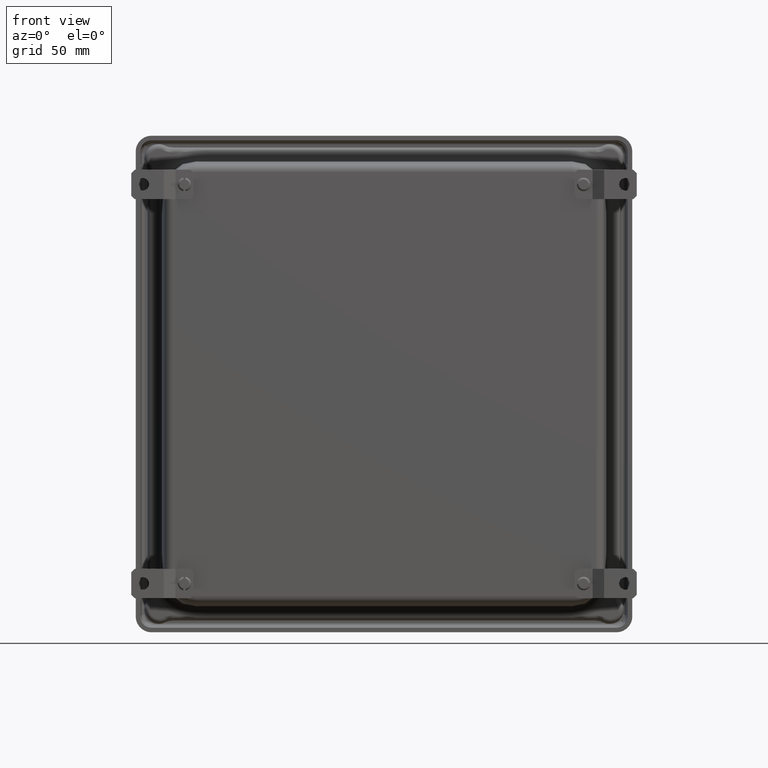
[diagram: clean part render]
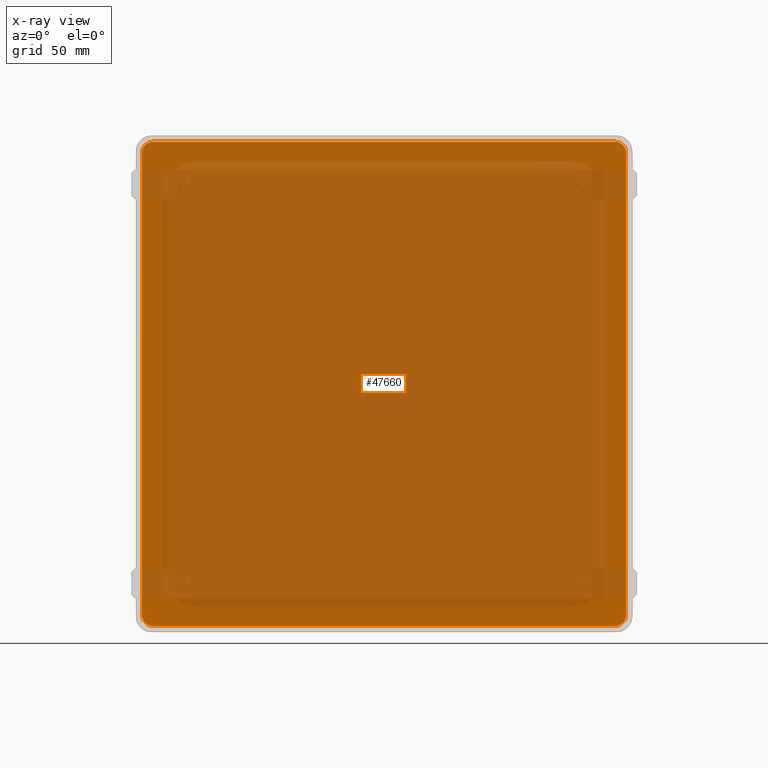
[diagram: x-ray — body ghosted, one internal face saturated and labeled with its STEP entity id]
A machine part, front view, then the same camera in x-ray: the body is ghosted and one INTERNAL B-rep face — a face not visible from any outside direction — is saturated and labeled: STEP entity #47660.
In plain terms, the highlighted planar face has unit normal (-0, -1, 0).
Its self-contained STEP definition (entity closure, byte-faithful):
#365 = VERTEX_POINT ( 'NONE', #79404 ) ;
#584 = ORIENTED_EDGE ( 'NONE', *, *, #28483, .T. ) ;
#670 = ORIENTED_EDGE ( 'NONE', *, *, #57991, .T. ) ;
#2273 = DIRECTION ( 'NONE',  ( 0.0000000000000000000, -0.0000000000000000000, 1.000000000000000000 ) ) ;
#3868 = CARTESIAN_POINT ( 'NONE',  ( -6.461213214539995400, 6.688971649877600200, -1.000000000000000000 ) ) ;
#4137 = VERTEX_POINT ( 'NONE', #26399 ) ;
#4634 = CARTESIAN_POINT ( 'NONE',  ( -6.688971649877601100, 6.377399235034170400, -1.000000000000000000 ) ) ;
#7120 = LINE ( 'NONE', #82484, #12074 ) ;
#7393 =( BOUNDED_CURVE ( )  B_SPLINE_CURVE ( 3, ( #79977, #10142, #22942, #41648 ),
 .UNSPECIFIED., .F., .F. ) 
 B_SPLINE_CURVE_WITH_KNOTS ( ( 4, 4 ),
 ( 5.499156671652528400, 6.283185307179586200 ),
 .UNSPECIFIED. ) 
 CURVE ( )  GEOMETRIC_REPRESENTATION_ITEM ( )  RATIONAL_B_SPLINE_CURVE ( ( 1.000000000000000000, 0.9494275757997194800, 0.9494275757997194800, 1.000000000000000000 ) ) 
 REPRESENTATION_ITEM ( '' )  );
#8036 = VERTEX_POINT ( 'NONE', #19845 ) ;
#9252 = PLANE ( 'NONE',  #20423 ) ;
#9755 = CARTESIAN_POINT ( 'NONE',  ( -6.538581471814454800, 6.656950339941526600, -1.000000000000000000 ) ) ;
#10142 = CARTESIAN_POINT ( 'NONE',  ( -6.461213214539992800, -6.688971649877601100, -1.000000000000000000 ) ) ;
#11873 = VECTOR ( 'NONE', #34181, 39.37007874015748100 ) ;
#12074 = VECTOR ( 'NONE', #52035, 39.37007874015748100 ) ;
#12364 =( BOUNDED_CURVE ( )  B_SPLINE_CURVE ( 3, ( #73857, #36107, #12638, #30802 ),
 .UNSPECIFIED., .F., .F. ) 
 B_SPLINE_CURVE_WITH_KNOTS ( ( 4, 4 ),
 ( 0.0000000000000000000, 0.7840286355270540400 ),
 .UNSPECIFIED. ) 
 CURVE ( )  GEOMETRIC_REPRESENTATION_ITEM ( )  RATIONAL_B_SPLINE_CURVE ( ( 1.000000000000000000, 0.9494275757997199200, 0.9494275757997199200, 1.000000000000000000 ) ) 
 REPRESENTATION_ITEM ( '' )  );
#12561 = ORIENTED_EDGE ( 'NONE', *, *, #16304, .T. ) ;
#12638 = CARTESIAN_POINT ( 'NONE',  ( 6.461213214539990100, -6.688971649877600200, -1.000000000000000000 ) ) ;
#13863 =( BOUNDED_CURVE ( )  B_SPLINE_CURVE ( 3, ( #49617, #56056, #24157, #81196 ),
 .UNSPECIFIED., .F., .F. ) 
 B_SPLINE_CURVE_WITH_KNOTS ( ( 4, 4 ),
 ( 5.499156671652532000, 6.283185307179586200 ),
 .UNSPECIFIED. ) 
 CURVE ( )  GEOMETRIC_REPRESENTATION_ITEM ( )  RATIONAL_B_SPLINE_CURVE ( ( 1.000000000000000000, 0.9494275757997199200, 0.9494275757997199200, 1.000000000000000000 ) ) 
 REPRESENTATION_ITEM ( '' )  );
#14672 = EDGE_CURVE ( 'NONE', #48879, #365, #35516, .T. ) ;
#16304 = EDGE_CURVE ( 'NONE', #18924, #28293, #7393, .T. ) ;
#17185 = VECTOR ( 'NONE', #57118, 39.37007874015748100 ) ;
#17260 = LINE ( 'NONE', #23387, #36235 ) ;
#18668 = EDGE_CURVE ( 'NONE', #28293, #27078, #71877, .T. ) ;
#18924 = VERTEX_POINT ( 'NONE', #29290 ) ;
#19845 = CARTESIAN_POINT ( 'NONE',  ( 6.597765905877987600, -6.597765905877988500, -1.000000000000000000 ) ) ;
#20423 = AXIS2_PLACEMENT_3D ( 'NONE', #72374, #2273, #47214 ) ;
#20514 = EDGE_LOOP ( 'NONE', ( #77952, #670, #51233, #584, #12561, #21388, #70526, #27698, #53599, #81486, #62223, #23059 ) ) ;
#21388 = ORIENTED_EDGE ( 'NONE', *, *, #18668, .T. ) ;
#22887 = CARTESIAN_POINT ( 'NONE',  ( -6.597765905877992900, 6.597765905877988500, -1.000000000000000000 ) ) ;
#22942 = CARTESIAN_POINT ( 'NONE',  ( -6.538581471814451300, -6.656950339941529300, -1.000000000000000000 ) ) ;
#23059 = ORIENTED_EDGE ( 'NONE', *, *, #14672, .T. ) ;
#23387 = CARTESIAN_POINT ( 'NONE',  ( -6.688971649877601100, 6.371191114029203500, -1.000000000000000000 ) ) ;
#24157 = CARTESIAN_POINT ( 'NONE',  ( 6.656950339941526600, -6.538581471814450400, -1.000000000000000000 ) ) ;
#24414 = CARTESIAN_POINT ( 'NONE',  ( -6.656950339941531100, 6.538581471814451300, -1.000000000000000000 ) ) ;
#25879 = EDGE_CURVE ( 'NONE', #365, #79570, #44164, .T. ) ;
#26399 = CARTESIAN_POINT ( 'NONE',  ( 6.377399235034169500, 6.688971649877601100, -1.000000000000000000 ) ) ;
#27078 = VERTEX_POINT ( 'NONE', #38550 ) ;
#27698 = ORIENTED_EDGE ( 'NONE', *, *, #45932, .T. ) ;
#28293 = VERTEX_POINT ( 'NONE', #39486 ) ;
#28483 = EDGE_CURVE ( 'NONE', #75767, #18924, #68873, .T. ) ;
#29290 = CARTESIAN_POINT ( 'NONE',  ( -6.377399235034173900, -6.688971649877601100, -1.000000000000000000 ) ) ;
#29735 = CARTESIAN_POINT ( 'NONE',  ( -6.597765905877992900, 6.597765905877988500, -1.000000000000000000 ) ) ;
#30284 = CARTESIAN_POINT ( 'NONE',  ( 6.461213214539988300, 6.688971649877602000, -1.000000000000000000 ) ) ;
#30802 = CARTESIAN_POINT ( 'NONE',  ( 6.377399235034170400, -6.688971649877599300, -1.000000000000000000 ) ) ;
#32308 = CARTESIAN_POINT ( 'NONE',  ( 6.597765905877986700, 6.597765905877992900, -1.000000000000000000 ) ) ;
#34154 = VERTEX_POINT ( 'NONE', #63646 ) ;
#34181 = DIRECTION ( 'NONE',  ( -1.000000000000000000, -1.592914282019978400E-016, -0.0000000000000000000 ) ) ;
#35516 =( BOUNDED_CURVE ( )  B_SPLINE_CURVE ( 3, ( #72917, #54195, #55047, #80465 ),
 .UNSPECIFIED., .F., .F. ) 
 B_SPLINE_CURVE_WITH_KNOTS ( ( 4, 4 ),
 ( -2.664535259100375700E-015, 0.7840286355270540400 ),
 .UNSPECIFIED. ) 
 CURVE ( )  GEOMETRIC_REPRESENTATION_ITEM ( )  RATIONAL_B_SPLINE_CURVE ( ( 1.000000000000000000, 0.9494275757997195900, 0.9494275757997195900, 1.000000000000000000 ) ) 
 REPRESENTATION_ITEM ( '' )  );
#36107 = CARTESIAN_POINT ( 'NONE',  ( 6.538581471814449500, -6.656950339941526600, -1.000000000000000000 ) ) ;
#36235 = VECTOR ( 'NONE', #68124, 39.37007874015748100 ) ;
#37980 = CARTESIAN_POINT ( 'NONE',  ( -6.688971649877603700, -6.461213214539991900, -0.9999999999999998900 ) ) ;
#38550 = CARTESIAN_POINT ( 'NONE',  ( -6.688971649877602000, -6.377399235034173900, -1.000000000000000000 ) ) ;
#39486 = CARTESIAN_POINT ( 'NONE',  ( -6.597765905877991200, -6.597765905877991200, -1.000000000000000000 ) ) ;
#41648 = CARTESIAN_POINT ( 'NONE',  ( -6.597765905877991200, -6.597765905877991200, -1.000000000000000000 ) ) ;
#44164 = LINE ( 'NONE', #50673, #17185 ) ;
#44589 =( BOUNDED_CURVE ( )  B_SPLINE_CURVE ( 3, ( #67009, #9755, #3868, #48549 ),
 .UNSPECIFIED., .F., .F. ) 
 B_SPLINE_CURVE_WITH_KNOTS ( ( 4, 4 ),
 ( 0.0000000000000000000, 0.7840286355270540400 ),
 .UNSPECIFIED. ) 
 CURVE ( )  GEOMETRIC_REPRESENTATION_ITEM ( )  RATIONAL_B_SPLINE_CURVE ( ( 1.000000000000000000, 0.9494275757997199200, 0.9494275757997199200, 1.000000000000000000 ) ) 
 REPRESENTATION_ITEM ( '' )  );
#45932 = EDGE_CURVE ( 'NONE', #55358, #78475, #47740, .T. ) ;
#47214 = DIRECTION ( 'NONE',  ( 1.000000000000000000, 0.0000000000000000000, -0.0000000000000000000 ) ) ;
#47660 = ADVANCED_FACE ( 'NONE', ( #57364 ), #9252, .F. ) ;
#47740 =( BOUNDED_CURVE ( )  B_SPLINE_CURVE ( 3, ( #4634, #49305, #24414, #29735 ),
 .UNSPECIFIED., .F., .F. ) 
 B_SPLINE_CURVE_WITH_KNOTS ( ( 4, 4 ),
 ( 5.499156671652528400, 6.283185307179586200 ),
 .UNSPECIFIED. ) 
 CURVE ( )  GEOMETRIC_REPRESENTATION_ITEM ( )  RATIONAL_B_SPLINE_CURVE ( ( 1.000000000000000000, 0.9494275757997194800, 0.9494275757997194800, 1.000000000000000000 ) ) 
 REPRESENTATION_ITEM ( '' )  );
#48549 = CARTESIAN_POINT ( 'NONE',  ( -6.377399235034175700, 6.688971649877597500, -1.000000000000000000 ) ) ;
#48879 = VERTEX_POINT ( 'NONE', #32308 ) ;
#49305 = CARTESIAN_POINT ( 'NONE',  ( -6.688971649877603700, 6.461213214539990100, -1.000000000000000000 ) ) ;
#49617 = CARTESIAN_POINT ( 'NONE',  ( 6.688971649877596600, -6.377399235034171300, -1.000000000000000000 ) ) ;
#50116 = CARTESIAN_POINT ( 'NONE',  ( -6.688971649877601100, 6.377399235034170400, -1.000000000000000000 ) ) ;
#50673 = CARTESIAN_POINT ( 'NONE',  ( 6.688971649877596600, -6.371191114029207900, -1.000000000000000000 ) ) ;
#51233 = ORIENTED_EDGE ( 'NONE', *, *, #64663, .T. ) ;
#52035 = DIRECTION ( 'NONE',  ( 1.000000000000000000, 1.592914282019978400E-016, -0.0000000000000000000 ) ) ;
#53191 = CARTESIAN_POINT ( 'NONE',  ( 6.688971649877596600, -6.377399235034171300, -1.000000000000000000 ) ) ;
#53599 = ORIENTED_EDGE ( 'NONE', *, *, #59784, .T. ) ;
#53826 = EDGE_CURVE ( 'NONE', #27078, #55358, #17260, .T. ) ;
#54195 = CARTESIAN_POINT ( 'NONE',  ( 6.656950339941524900, 6.538581471814452200, -0.9999999999999998900 ) ) ;
#55047 = CARTESIAN_POINT ( 'NONE',  ( 6.688971649877597500, 6.461213214539992800, -0.9999999999999998900 ) ) ;
#55358 = VERTEX_POINT ( 'NONE', #50116 ) ;
#56056 = CARTESIAN_POINT ( 'NONE',  ( 6.688971649877599300, -6.461213214539991000, -1.000000000000000000 ) ) ;
#56221 = CARTESIAN_POINT ( 'NONE',  ( -6.688971649877602000, -6.377399235034173900, -1.000000000000000000 ) ) ;
#56551 = CARTESIAN_POINT ( 'NONE',  ( 6.538581471814448600, 6.656950339941530200, -1.000000000000000000 ) ) ;
#57118 = DIRECTION ( 'NONE',  ( -0.0000000000000000000, -1.000000000000000000, -0.0000000000000000000 ) ) ;
#57364 = FACE_OUTER_BOUND ( 'NONE', #20514, .T. ) ;
#57676 = CARTESIAN_POINT ( 'NONE',  ( 6.377399235034170400, -6.688971649877599300, -1.000000000000000000 ) ) ;
#57991 = EDGE_CURVE ( 'NONE', #79570, #8036, #13863, .T. ) ;
#59784 = EDGE_CURVE ( 'NONE', #78475, #34154, #44589, .T. ) ;
#61594 = CARTESIAN_POINT ( 'NONE',  ( 6.377399235034169500, 6.688971649877601100, -1.000000000000000000 ) ) ;
#62223 = ORIENTED_EDGE ( 'NONE', *, *, #73001, .T. ) ;
#63646 = CARTESIAN_POINT ( 'NONE',  ( -6.377399235034175700, 6.688971649877597500, -1.000000000000000000 ) ) ;
#64663 = EDGE_CURVE ( 'NONE', #8036, #75767, #12364, .T. ) ;
#67009 = CARTESIAN_POINT ( 'NONE',  ( -6.597765905877992900, 6.597765905877988500, -1.000000000000000000 ) ) ;
#68124 = DIRECTION ( 'NONE',  ( -0.0000000000000000000, 1.000000000000000000, -0.0000000000000000000 ) ) ;
#68873 = LINE ( 'NONE', #72462, #11873 ) ;
#70526 = ORIENTED_EDGE ( 'NONE', *, *, #53826, .T. ) ;
#71877 =( BOUNDED_CURVE ( )  B_SPLINE_CURVE ( 3, ( #76320, #75783, #37980, #56221 ),
 .UNSPECIFIED., .F., .F. ) 
 B_SPLINE_CURVE_WITH_KNOTS ( ( 4, 4 ),
 ( -2.664535259100375700E-015, 0.7840286355270540400 ),
 .UNSPECIFIED. ) 
 CURVE ( )  GEOMETRIC_REPRESENTATION_ITEM ( )  RATIONAL_B_SPLINE_CURVE ( ( 1.000000000000000000, 0.9494275757997195900, 0.9494275757997195900, 1.000000000000000000 ) ) 
 REPRESENTATION_ITEM ( '' )  );
#72374 = CARTESIAN_POINT ( 'NONE',  ( 0.0000000000000000000, 0.0000000000000000000, -1.000000000000000000 ) ) ;
#72462 = CARTESIAN_POINT ( 'NONE',  ( -6.371191114029207000, -6.688971649877601100, -1.000000000000000000 ) ) ;
#72917 = CARTESIAN_POINT ( 'NONE',  ( 6.597765905877986700, 6.597765905877992900, -1.000000000000000000 ) ) ;
#73001 = EDGE_CURVE ( 'NONE', #4137, #48879, #74813, .T. ) ;
#73857 = CARTESIAN_POINT ( 'NONE',  ( 6.597765905877987600, -6.597765905877988500, -1.000000000000000000 ) ) ;
#74813 =( BOUNDED_CURVE ( )  B_SPLINE_CURVE ( 3, ( #61594, #30284, #56551, #75847 ),
 .UNSPECIFIED., .F., .F. ) 
 B_SPLINE_CURVE_WITH_KNOTS ( ( 4, 4 ),
 ( 5.499156671652528400, 6.283185307179586200 ),
 .UNSPECIFIED. ) 
 CURVE ( )  GEOMETRIC_REPRESENTATION_ITEM ( )  RATIONAL_B_SPLINE_CURVE ( ( 1.000000000000000000, 0.9494275757997194800, 0.9494275757997194800, 1.000000000000000000 ) ) 
 REPRESENTATION_ITEM ( '' )  );
#75767 = VERTEX_POINT ( 'NONE', #57676 ) ;
#75783 = CARTESIAN_POINT ( 'NONE',  ( -6.656950339941529300, -6.538581471814451300, -0.9999999999999998900 ) ) ;
#75847 = CARTESIAN_POINT ( 'NONE',  ( 6.597765905877986700, 6.597765905877992900, -1.000000000000000000 ) ) ;
#76320 = CARTESIAN_POINT ( 'NONE',  ( -6.597765905877991200, -6.597765905877991200, -1.000000000000000000 ) ) ;
#77952 = ORIENTED_EDGE ( 'NONE', *, *, #25879, .T. ) ;
#78475 = VERTEX_POINT ( 'NONE', #22887 ) ;
#79404 = CARTESIAN_POINT ( 'NONE',  ( 6.688971649877596600, 6.377399235034174800, -1.000000000000000000 ) ) ;
#79570 = VERTEX_POINT ( 'NONE', #53191 ) ;
#79977 = CARTESIAN_POINT ( 'NONE',  ( -6.377399235034173900, -6.688971649877601100, -1.000000000000000000 ) ) ;
#80465 = CARTESIAN_POINT ( 'NONE',  ( 6.688971649877596600, 6.377399235034174800, -1.000000000000000000 ) ) ;
#81196 = CARTESIAN_POINT ( 'NONE',  ( 6.597765905877987600, -6.597765905877988500, -1.000000000000000000 ) ) ;
#81486 = ORIENTED_EDGE ( 'NONE', *, *, #82183, .T. ) ;
#82183 = EDGE_CURVE ( 'NONE', #34154, #4137, #7120, .T. ) ;
#82484 = CARTESIAN_POINT ( 'NONE',  ( 6.371191114029205200, 6.688971649877601100, -1.000000000000000000 ) ) ;